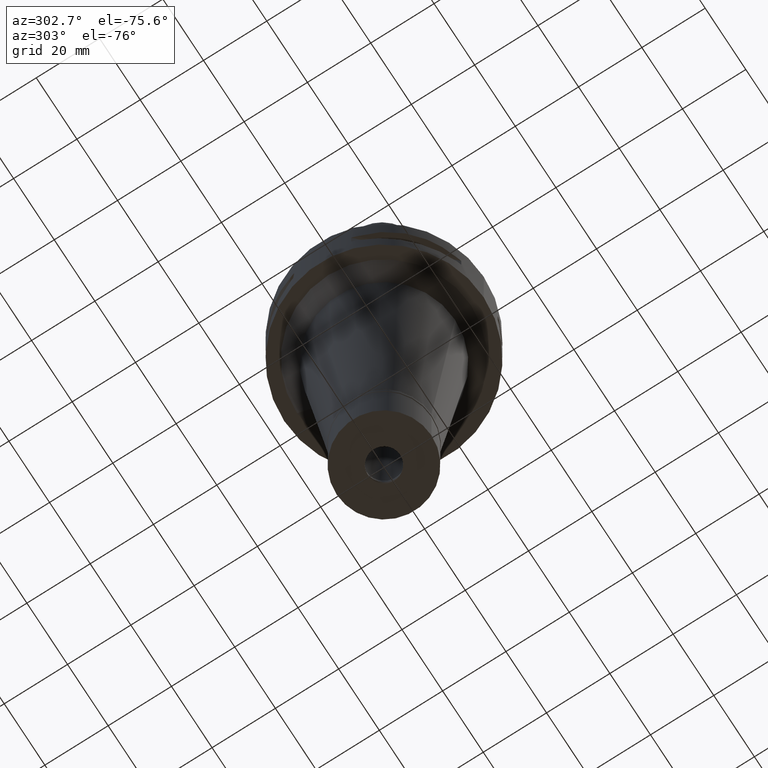
[diagram: clean part render]
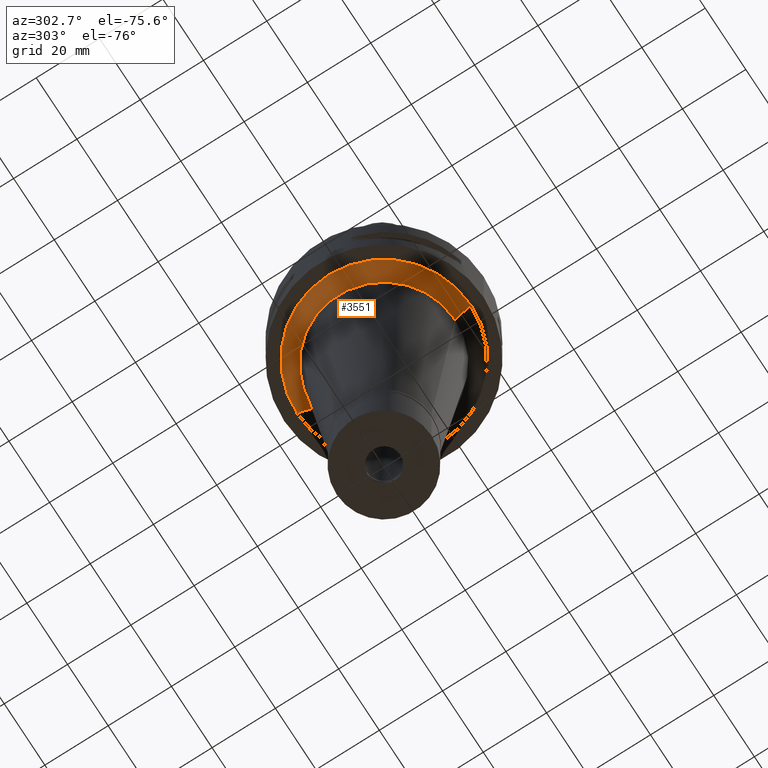
[diagram: same view with one face highlighted and labeled with its STEP entity id]
A machine part, auxiliary view. The second image highlights one B-rep face of the part: STEP entity #3551.
In plain terms, the highlighted conical surface has half-angle 45 deg.
Its self-contained STEP definition (entity closure, byte-faithful):
#105 = DIRECTION ( 'NONE',  ( 0.0000000000000000000, -1.000000000000000000, 0.0000000000000000000 ) ) ;
#226 = VERTEX_POINT ( 'NONE', #2093 ) ;
#312 = VERTEX_POINT ( 'NONE', #1721 ) ;
#394 = DIRECTION ( 'NONE',  ( 0.0000000000000000000, 0.7071067811867980391, -0.7071067811862969954 ) ) ;
#485 = LINE ( 'NONE', #2050, #3770 ) ;
#719 = CARTESIAN_POINT ( 'NONE',  ( 0.0000000000000000000, 27.45403413240999768, -22.00000000000000000 ) ) ;
#869 = EDGE_LOOP ( 'NONE', ( #1407, #3674, #4780, #4960 ) ) ;
#905 = DIRECTION ( 'NONE',  ( 0.0000000000000000000, -0.7071067811867980391, -0.7071067811862969954 ) ) ;
#1061 = AXIS2_PLACEMENT_3D ( 'NONE', #3365, #4572, #3412 ) ;
#1100 = CARTESIAN_POINT ( 'NONE',  ( 0.0000000000000000000, -22.45403413240999768, -27.00000000000000000 ) ) ;
#1136 = DIRECTION ( 'NONE',  ( 0.0000000000000000000, 1.000000000000000000, 0.0000000000000000000 ) ) ;
#1407 = ORIENTED_EDGE ( 'NONE', *, *, #4722, .F. ) ;
#1477 = VERTEX_POINT ( 'NONE', #1100 ) ;
#1554 = CONICAL_SURFACE ( 'NONE', #3501, 24.95403413241000123, 0.7853981633972997312 ) ;
#1656 = EDGE_CURVE ( 'NONE', #3455, #226, #485, .T. ) ;
#1721 = CARTESIAN_POINT ( 'NONE',  ( 0.0000000000000000000, -27.45403413240999768, -22.00000000000000000 ) ) ;
#1782 = EDGE_CURVE ( 'NONE', #312, #3455, #4174, .T. ) ;
#1820 = DIRECTION ( 'NONE',  ( 0.0000000000000000000, 0.0000000000000000000, 1.000000000000000000 ) ) ;
#1842 = FACE_OUTER_BOUND ( 'NONE', #869, .T. ) ;
#1866 = VECTOR ( 'NONE', #394, 1000.000000000000000 ) ;
#1963 = CARTESIAN_POINT ( 'NONE',  ( 0.0000000000000000000, -27.45403413240999768, -22.00000000000000000 ) ) ;
#2050 = CARTESIAN_POINT ( 'NONE',  ( 0.0000000000000000000, 27.45403413240999768, -22.00000000000000000 ) ) ;
#2093 = CARTESIAN_POINT ( 'NONE',  ( 0.0000000000000000000, 22.45403413240999768, -27.00000000000000000 ) ) ;
#2938 = AXIS2_PLACEMENT_3D ( 'NONE', #4383, #3612, #105 ) ;
#3062 = CARTESIAN_POINT ( 'NONE',  ( 0.0000000000000000000, 0.0000000000000000000, -24.50000000000000000 ) ) ;
#3365 = CARTESIAN_POINT ( 'NONE',  ( 0.0000000000000000000, 0.0000000000000000000, -27.00000000000000000 ) ) ;
#3412 = DIRECTION ( 'NONE',  ( 0.0000000000000000000, -1.000000000000000000, 0.0000000000000000000 ) ) ;
#3455 = VERTEX_POINT ( 'NONE', #719 ) ;
#3501 = AXIS2_PLACEMENT_3D ( 'NONE', #3062, #1820, #1136 ) ;
#3551 = ADVANCED_FACE ( 'NONE', ( #1842 ), #1554, .T. ) ;
#3612 = DIRECTION ( 'NONE',  ( 0.0000000000000000000, 0.0000000000000000000, -1.000000000000000000 ) ) ;
#3674 = ORIENTED_EDGE ( 'NONE', *, *, #3958, .F. ) ;
#3770 = VECTOR ( 'NONE', #905, 1000.000000000000000 ) ;
#3918 = CIRCLE ( 'NONE', #1061, 22.45403413240999768 ) ;
#3958 = EDGE_CURVE ( 'NONE', #312, #1477, #4294, .T. ) ;
#4174 = CIRCLE ( 'NONE', #2938, 27.45403413240999768 ) ;
#4294 = LINE ( 'NONE', #1963, #1866 ) ;
#4383 = CARTESIAN_POINT ( 'NONE',  ( 0.0000000000000000000, 0.0000000000000000000, -22.00000000000000000 ) ) ;
#4572 = DIRECTION ( 'NONE',  ( 0.0000000000000000000, 0.0000000000000000000, -1.000000000000000000 ) ) ;
#4722 = EDGE_CURVE ( 'NONE', #1477, #226, #3918, .T. ) ;
#4780 = ORIENTED_EDGE ( 'NONE', *, *, #1782, .T. ) ;
#4960 = ORIENTED_EDGE ( 'NONE', *, *, #1656, .T. ) ;